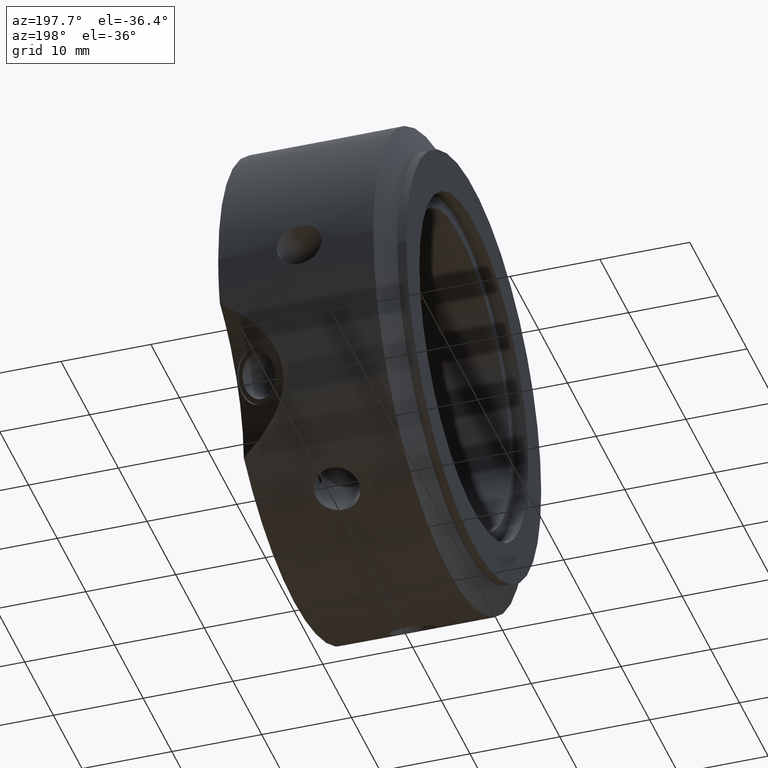
[diagram: clean part render]
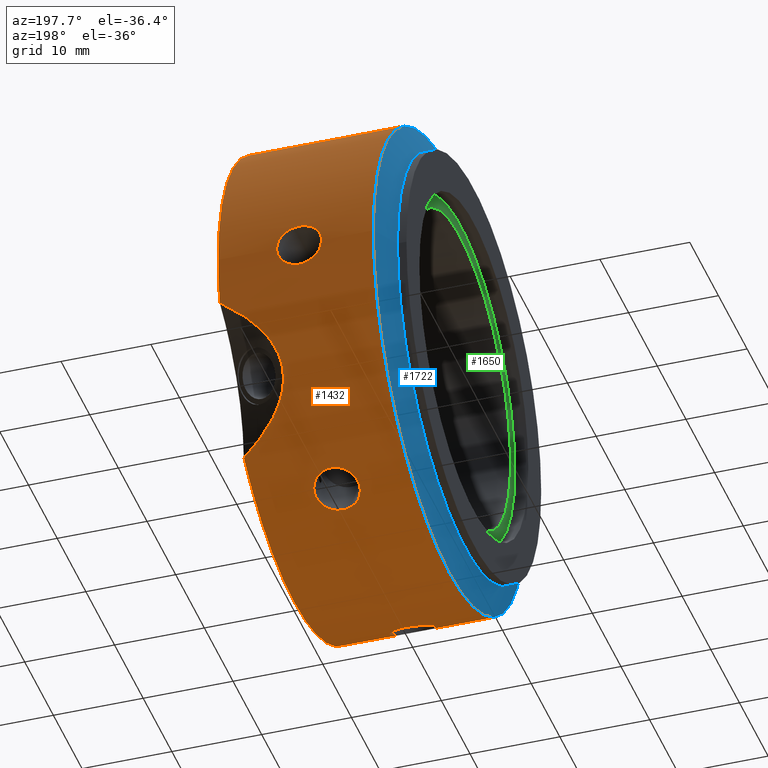
[diagram: same view with three faces highlighted in distinct colors, each labeled with its STEP entity id]
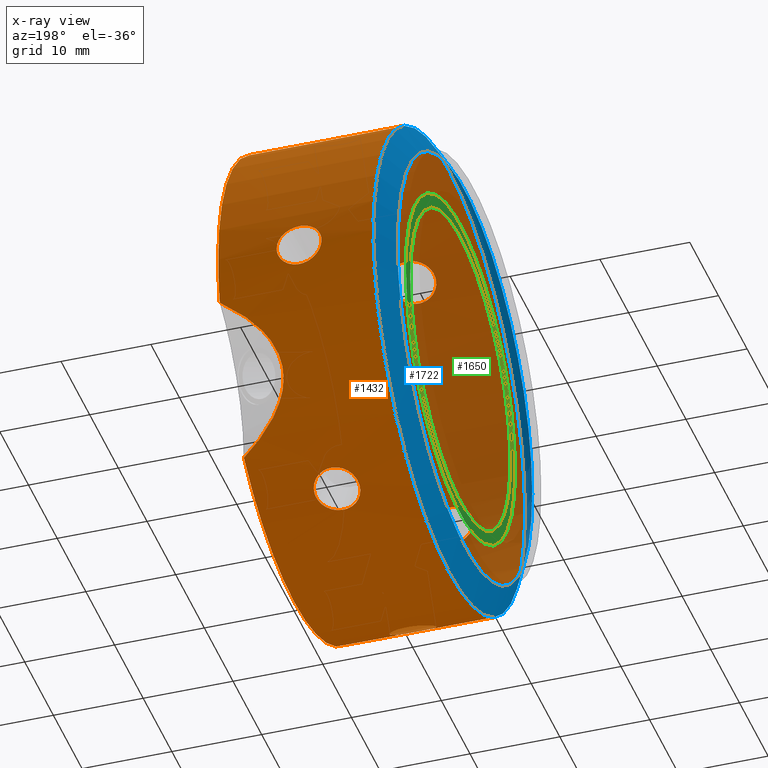
[diagram: x-ray of the same camera — body ghosted, the three highlighted faces saturated]
A machine part, auxiliary view with three faces highlighted in distinct colors.
The next image is the same camera in x-ray (body ghosted, the three faces saturated) — at least one of them is partly hidden behind the body in this view.
Their STEP definitions:

[orange] entity #1432 — the highlighted cylindrical surface (bore or boss wall) has radius 26.5 mm, axis along (1, 0, 0).
#168=CARTESIAN_POINT('',(8.5,13.250000000000025,22.949673200287613));
#169=VERTEX_POINT('',#168);
#170=CARTESIAN_POINT('',(13.5,13.250000000000027,22.949673200287613));
#171=VERTEX_POINT('',#170);
#172=CARTESIAN_POINT('',(8.5,13.250000000000025,22.949673200287613));
#173=CARTESIAN_POINT('',(8.5,13.522023480084201,22.792620370835117));
#174=CARTESIAN_POINT('',(8.562812309652411,13.808990223966212,22.619830769711818));
#175=CARTESIAN_POINT('',(8.818004759777944,14.331241888302115,22.292610008625569));
#176=CARTESIAN_POINT('',(9.010374587034297,14.56669843160158,22.138444796133694));
#177=CARTESIAN_POINT('',(9.45409210456828,14.936136238619977,21.890894813058424));
#178=CARTESIAN_POINT('',(9.735085796219577,15.094826253887202,21.781015258676018));
#179=CARTESIAN_POINT('',(10.350978508507003,15.30466606253157,21.634084267917224));
#180=CARTESIAN_POINT('',(10.685893495108676,15.355969467734038,21.597319317591712));
#181=CARTESIAN_POINT('',(11.314106504891324,15.355969467734038,21.597319317591712));
#182=CARTESIAN_POINT('',(11.649021491492991,15.30466606253157,21.634084267917224));
#183=CARTESIAN_POINT('',(12.264914203780421,15.094826253887202,21.781015258676018));
#184=CARTESIAN_POINT('',(12.545907895431721,14.93613623861998,21.890894813058424));
#185=CARTESIAN_POINT('',(12.989625412965701,14.566698431601582,22.138444796133694));
#186=CARTESIAN_POINT('',(13.18199524022206,14.331241888302113,22.292610008625569));
#187=CARTESIAN_POINT('',(13.437187690347589,13.808990223966212,22.619830769711818));
#188=CARTESIAN_POINT('',(13.5,13.522023480084197,22.792620370835117));
#189=CARTESIAN_POINT('',(13.5,13.250000000000021,22.949673200287613));
#190=B_SPLINE_CURVE_WITH_KNOTS('',3,(#172,#173,#174,#175,#176,#177,#178,#179,#180,#181,#182,#183,#184,#185,#186,#187,#188,#189),.UNSPECIFIED.,.F.,.U.,(4,2,2,2,2,2,2,2,4),(0.37692729827779,0.471158995949288,0.565390693620787,0.659622645088184,0.753854596555581,0.848086548022978,0.942318499490374,1.036550197161873,1.130781894833371),.UNSPECIFIED.);
#191=EDGE_CURVE('',#169,#171,#190,.T.);
#193=CARTESIAN_POINT('',(13.5,13.250000000000021,22.949673200287609));
#194=CARTESIAN_POINT('',(13.5,12.977976519915845,23.106726029740106));
#195=CARTESIAN_POINT('',(13.437187690347589,12.684852963892283,23.26885171942159));
#196=CARTESIAN_POINT('',(13.18199524022206,12.140345639977967,23.557524547362057));
#197=CARTESIAN_POINT('',(12.989625412965704,11.889106377930446,23.684353289100734));
#198=CARTESIAN_POINT('',(12.545907895431721,11.49000290037165,23.880520823559443));
#199=CARTESIAN_POINT('',(12.264914203780425,11.31549940728636,23.963010630916596));
#200=CARTESIAN_POINT('',(11.649021491492999,11.083333532363845,24.071271740548493));
#201=CARTESIAN_POINT('',(11.314106504891326,11.025842448811847,24.097319317591719));
#202=CARTESIAN_POINT('',(11.0,11.025842448811847,24.097319317591719));
#203=CARTESIAN_POINT('',(10.685893495108678,11.025842448811847,24.097319317591719));
#204=CARTESIAN_POINT('',(10.350978508507005,11.083333532363842,24.071271740548493));
#205=CARTESIAN_POINT('',(9.735085796219579,11.315499407286358,23.963010630916596));
#206=CARTESIAN_POINT('',(9.454092104568282,11.49000290037165,23.880520823559443));
#207=CARTESIAN_POINT('',(9.010374587034299,11.889106377930442,23.684353289100734));
#208=CARTESIAN_POINT('',(8.81800475977794,12.140345639977969,23.557524547362057));
#209=CARTESIAN_POINT('',(8.562812309652411,12.684852963892288,23.26885171942159));
#210=CARTESIAN_POINT('',(8.5,12.977976519915845,23.106726029740109));
#211=CARTESIAN_POINT('',(8.5,13.250000000000021,22.949673200287609));
#212=B_SPLINE_CURVE_WITH_KNOTS('',3,(#193,#194,#195,#196,#197,#198,#199,#200,#201,#202,#203,#204,#205,#206,#207,#208,#209,#210,#211),.UNSPECIFIED.,.F.,.U.,(4,2,2,2,3,2,2,2,4),(1.130781894833371,1.225013592504869,1.319245290176367,1.413477241643764,1.507709193111161,1.601941144578558,1.696173096045955,1.790404793717453,1.884636491388952),.UNSPECIFIED.);
#213=EDGE_CURVE('',#171,#169,#212,.T.);
#324=CARTESIAN_POINT('',(8.5,26.500000000000004,-1.765255E-014));
#325=VERTEX_POINT('',#324);
#326=CARTESIAN_POINT('',(13.5,26.500000000000004,-1.776357E-014));
#327=VERTEX_POINT('',#326);
#328=CARTESIAN_POINT('',(8.5,26.500000000000004,-1.727785E-014));
#329=CARTESIAN_POINT('',(8.5,26.500000000000004,-0.314105658905011));
#330=CARTESIAN_POINT('',(8.562812309652411,26.493843187858452,-0.649020949709788));
#331=CARTESIAN_POINT('',(8.818004759777944,26.471587528280036,-1.264914538736506));
#332=CARTESIAN_POINT('',(9.010374587034297,26.45580480953198,-1.545908492967053));
#333=CARTESIAN_POINT('',(9.45409210456828,26.42613913899158,-1.989626010501036));
#334=CARTESIAN_POINT('',(9.735085796219581,26.410325661173516,-2.181995372240594));
#335=CARTESIAN_POINT('',(10.350978508507007,26.387999594895369,-2.43718747263128));
#336=CARTESIAN_POINT('',(10.685893495108678,26.381811916545843,-2.500000000000018));
#337=CARTESIAN_POINT('',(11.314106504891324,26.381811916545843,-2.500000000000018));
#338=CARTESIAN_POINT('',(11.649021491492995,26.387999594895369,-2.43718747263128));
#339=CARTESIAN_POINT('',(12.264914203780421,26.410325661173516,-2.181995372240594));
#340=CARTESIAN_POINT('',(12.545907895431721,26.42613913899158,-1.989626010501036));
#341=CARTESIAN_POINT('',(12.989625412965701,26.45580480953198,-1.545908492967054));
#342=CARTESIAN_POINT('',(13.18199524022206,26.471587528280036,-1.264914538736507));
#343=CARTESIAN_POINT('',(13.437187690347589,26.493843187858452,-0.649020949709789));
#344=CARTESIAN_POINT('',(13.5,26.500000000000004,-0.314105658905012));
#345=CARTESIAN_POINT('',(13.5,26.500000000000004,-1.797174E-014));
#346=B_SPLINE_CURVE_WITH_KNOTS('',3,(#328,#329,#330,#331,#332,#333,#334,#335,#336,#337,#338,#339,#340,#341,#342,#343,#344,#345),.UNSPECIFIED.,.F.,.U.,(4,2,2,2,2,2,2,2,4),(0.37692729827779,0.471158995949288,0.565390693620787,0.659622645088184,0.753854596555581,0.848086548022977,0.942318499490374,1.036550197161873,1.130781894833371),.UNSPECIFIED.);
#347=EDGE_CURVE('',#325,#327,#346,.T.);
#349=CARTESIAN_POINT('',(13.5,26.500000000000004,-1.838807E-014));
#350=CARTESIAN_POINT('',(13.5,26.500000000000004,0.314105658904975));
#351=CARTESIAN_POINT('',(13.437187690347592,26.493843187858456,0.649020949709753));
#352=CARTESIAN_POINT('',(13.181995240222061,26.47158752828004,1.264914538736469));
#353=CARTESIAN_POINT('',(12.989625412965706,26.45580480953198,1.545908492967018));
#354=CARTESIAN_POINT('',(12.545907895431723,26.426139138991584,1.989626010501));
#355=CARTESIAN_POINT('',(12.264914203780426,26.410325661173523,2.181995372240556));
#356=CARTESIAN_POINT('',(11.649021491492999,26.387999594895373,2.437187472631243));
#357=CARTESIAN_POINT('',(11.314106504891326,26.381811916545843,2.499999999999983));
#358=CARTESIAN_POINT('',(11.0,26.381811916545843,2.499999999999983));
#359=CARTESIAN_POINT('',(10.685893495108678,26.381811916545843,2.499999999999983));
#360=CARTESIAN_POINT('',(10.350978508507007,26.387999594895373,2.437187472631245));
#361=CARTESIAN_POINT('',(9.735085796219581,26.410325661173523,2.181995372240559));
#362=CARTESIAN_POINT('',(9.454092104568282,26.42613913899158,1.989626010501));
#363=CARTESIAN_POINT('',(9.010374587034299,26.45580480953198,1.545908492967018));
#364=CARTESIAN_POINT('',(8.818004759777944,26.471587528280036,1.264914538736471));
#365=CARTESIAN_POINT('',(8.562812309652411,26.493843187858452,0.649020949709753));
#366=CARTESIAN_POINT('',(8.500000000000002,26.500000000000004,0.314105658904977));
#367=CARTESIAN_POINT('',(8.500000000000002,26.500000000000004,-1.706968E-014));
#368=B_SPLINE_CURVE_WITH_KNOTS('',3,(#349,#350,#351,#352,#353,#354,#355,#356,#357,#358,#359,#360,#361,#362,#363,#364,#365,#366,#367),.UNSPECIFIED.,.F.,.U.,(4,2,2,2,3,2,2,2,4),(1.130781894833371,1.225013592504869,1.319245290176367,1.413477241643764,1.507709193111161,1.601941144578558,1.696173096045955,1.790404793717453,1.884636491388951),.UNSPECIFIED.);
#369=EDGE_CURVE('',#327,#325,#368,.T.);
#480=CARTESIAN_POINT('',(8.5,13.249999999999995,-22.949673200287634));
#481=VERTEX_POINT('',#480);
#482=CARTESIAN_POINT('',(13.5,13.249999999999993,-22.949673200287634));
#483=VERTEX_POINT('',#482);
#484=CARTESIAN_POINT('',(8.5,13.249999999999995,-22.949673200287627));
#485=CARTESIAN_POINT('',(8.5,12.977976519915819,-23.106726029740127));
#486=CARTESIAN_POINT('',(8.562812309652413,12.684852963892254,-23.268851719421608));
#487=CARTESIAN_POINT('',(8.818004759777944,12.140345639977939,-23.557524547362078));
#488=CARTESIAN_POINT('',(9.010374587034297,11.889106377930414,-23.684353289100745));
#489=CARTESIAN_POINT('',(9.45409210456828,11.490002900371618,-23.880520823559451));
#490=CARTESIAN_POINT('',(9.735085796219579,11.315499407286339,-23.96301063091661));
#491=CARTESIAN_POINT('',(10.350978508507005,11.08333353236382,-24.071271740548504));
#492=CARTESIAN_POINT('',(10.685893495108678,11.025842448811819,-24.097319317591726));
#493=CARTESIAN_POINT('',(11.314106504891321,11.025842448811819,-24.097319317591726));
#494=CARTESIAN_POINT('',(11.649021491492997,11.083333532363817,-24.071271740548504));
#495=CARTESIAN_POINT('',(12.264914203780425,11.315499407286334,-23.96301063091661));
#496=CARTESIAN_POINT('',(12.545907895431721,11.490002900371618,-23.880520823559451));
#497=CARTESIAN_POINT('',(12.989625412965704,11.889106377930414,-23.684353289100748));
#498=CARTESIAN_POINT('',(13.181995240222054,12.140345639977932,-23.557524547362078));
#499=CARTESIAN_POINT('',(13.437187690347589,12.684852963892252,-23.268851719421608));
#500=CARTESIAN_POINT('',(13.5,12.977976519915821,-23.106726029740123));
#501=CARTESIAN_POINT('',(13.5,13.249999999999996,-22.949673200287627));
#502=B_SPLINE_CURVE_WITH_KNOTS('',3,(#484,#485,#486,#487,#488,#489,#490,#491,#492,#493,#494,#495,#496,#497,#498,#499,#500,#501),.UNSPECIFIED.,.F.,.U.,(4,2,2,2,2,2,2,2,4),(0.37692729827779,0.471158995949289,0.565390693620787,0.659622645088184,0.753854596555581,0.848086548022978,0.942318499490375,1.036550197161873,1.130781894833371),.UNSPECIFIED.);
#503=EDGE_CURVE('',#481,#483,#502,.T.);
#505=CARTESIAN_POINT('',(13.5,13.249999999999995,-22.949673200287627));
#506=CARTESIAN_POINT('',(13.5,13.522023480084171,-22.792620370835127));
#507=CARTESIAN_POINT('',(13.437187690347589,13.808990223966187,-22.619830769711836));
#508=CARTESIAN_POINT('',(13.18199524022206,14.331241888302086,-22.292610008625587));
#509=CARTESIAN_POINT('',(12.989625412965701,14.566698431601555,-22.138444796133712));
#510=CARTESIAN_POINT('',(12.545907895431721,14.936136238619952,-21.890894813058441));
#511=CARTESIAN_POINT('',(12.264914203780426,15.094826253887177,-21.781015258676035));
#512=CARTESIAN_POINT('',(11.649021491492997,15.304666062531547,-21.634084267917242));
#513=CARTESIAN_POINT('',(11.314106504891324,15.355969467734013,-21.597319317591726));
#514=CARTESIAN_POINT('',(11.0,15.355969467734013,-21.597319317591726));
#515=CARTESIAN_POINT('',(10.685893495108678,15.355969467734013,-21.597319317591726));
#516=CARTESIAN_POINT('',(10.350978508507009,15.304666062531545,-21.634084267917242));
#517=CARTESIAN_POINT('',(9.735085796219579,15.094826253887174,-21.781015258676035));
#518=CARTESIAN_POINT('',(9.454092104568282,14.936136238619952,-21.890894813058441));
#519=CARTESIAN_POINT('',(9.010374587034299,14.566698431601555,-22.138444796133712));
#520=CARTESIAN_POINT('',(8.818004759777944,14.331241888302086,-22.292610008625587));
#521=CARTESIAN_POINT('',(8.562812309652411,13.808990223966187,-22.619830769711836));
#522=CARTESIAN_POINT('',(8.5,13.522023480084171,-22.792620370835131));
#523=CARTESIAN_POINT('',(8.5,13.249999999999995,-22.949673200287634));
#524=B_SPLINE_CURVE_WITH_KNOTS('',3,(#505,#506,#507,#508,#509,#510,#511,#512,#513,#514,#515,#516,#517,#518,#519,#520,#521,#522,#523),.UNSPECIFIED.,.F.,.U.,(4,2,2,2,3,2,2,2,4),(1.130781894833371,1.225013592504869,1.319245290176367,1.413477241643764,1.507709193111161,1.601941144578558,1.696173096045955,1.790404793717453,1.884636491388952),.UNSPECIFIED.);
#525=EDGE_CURVE('',#483,#481,#524,.T.);
#636=CARTESIAN_POINT('',(8.5,-13.250000000000011,-22.949673200287624));
#637=VERTEX_POINT('',#636);
#638=CARTESIAN_POINT('',(13.5,-13.250000000000011,-22.949673200287624));
#639=VERTEX_POINT('',#638);
#640=CARTESIAN_POINT('',(8.5,-13.250000000000011,-22.949673200287624));
#641=CARTESIAN_POINT('',(8.5,-13.522023480084187,-22.792620370835124));
#642=CARTESIAN_POINT('',(8.562812309652411,-13.8089902239662,-22.619830769711825));
#643=CARTESIAN_POINT('',(8.818004759777942,-14.331241888302099,-22.292610008625577));
#644=CARTESIAN_POINT('',(9.010374587034297,-14.566698431601568,-22.138444796133705));
#645=CARTESIAN_POINT('',(9.45409210456828,-14.936136238619966,-21.890894813058431));
#646=CARTESIAN_POINT('',(9.735085796219575,-15.09482625388719,-21.781015258676028));
#647=CARTESIAN_POINT('',(10.350978508507001,-15.30466606253156,-21.634084267917231));
#648=CARTESIAN_POINT('',(10.685893495108676,-15.355969467734024,-21.597319317591719));
#649=CARTESIAN_POINT('',(11.314106504891326,-15.355969467734024,-21.597319317591719));
#650=CARTESIAN_POINT('',(11.649021491493002,-15.30466606253156,-21.634084267917231));
#651=CARTESIAN_POINT('',(12.264914203780426,-15.09482625388719,-21.781015258676028));
#652=CARTESIAN_POINT('',(12.545907895431721,-14.936136238619966,-21.890894813058431));
#653=CARTESIAN_POINT('',(12.989625412965704,-14.566698431601566,-22.138444796133705));
#654=CARTESIAN_POINT('',(13.181995240222054,-14.331241888302102,-22.292610008625573));
#655=CARTESIAN_POINT('',(13.437187690347587,-13.8089902239662,-22.619830769711822));
#656=CARTESIAN_POINT('',(13.5,-13.522023480084187,-22.792620370835124));
#657=CARTESIAN_POINT('',(13.5,-13.250000000000011,-22.94967320028762));
#658=B_SPLINE_CURVE_WITH_KNOTS('',3,(#640,#641,#642,#643,#644,#645,#646,#647,#648,#649,#650,#651,#652,#653,#654,#655,#656,#657),.UNSPECIFIED.,.F.,.U.,(4,2,2,2,2,2,2,2,4),(0.37692729827779,0.471158995949288,0.565390693620787,0.659622645088184,0.753854596555581,0.848086548022978,0.942318499490375,1.036550197161873,1.130781894833371),.UNSPECIFIED.);
#659=EDGE_CURVE('',#637,#639,#658,.T.);
#661=CARTESIAN_POINT('',(13.5,-13.250000000000011,-22.94967320028762));
#662=CARTESIAN_POINT('',(13.5,-12.977976519915835,-23.10672602974012));
#663=CARTESIAN_POINT('',(13.437187690347589,-12.68485296389227,-23.268851719421598));
#664=CARTESIAN_POINT('',(13.18199524022206,-12.140345639977957,-23.557524547362068));
#665=CARTESIAN_POINT('',(12.989625412965701,-11.88910637793043,-23.684353289100738));
#666=CARTESIAN_POINT('',(12.545907895431721,-11.490002900371636,-23.880520823559443));
#667=CARTESIAN_POINT('',(12.264914203780428,-11.315499407286351,-23.963010630916596));
#668=CARTESIAN_POINT('',(11.649021491493002,-11.083333532363833,-24.071271740548493));
#669=CARTESIAN_POINT('',(11.314106504891324,-11.025842448811837,-24.097319317591722));
#670=CARTESIAN_POINT('',(11.0,-11.025842448811837,-24.097319317591722));
#671=CARTESIAN_POINT('',(10.685893495108678,-11.025842448811837,-24.097319317591722));
#672=CARTESIAN_POINT('',(10.350978508507007,-11.083333532363834,-24.071271740548497));
#673=CARTESIAN_POINT('',(9.735085796219581,-11.31549940728635,-23.9630106309166));
#674=CARTESIAN_POINT('',(9.454092104568282,-11.490002900371634,-23.880520823559443));
#675=CARTESIAN_POINT('',(9.010374587034299,-11.889106377930428,-23.684353289100738));
#676=CARTESIAN_POINT('',(8.818004759777946,-12.140345639977951,-23.557524547362064));
#677=CARTESIAN_POINT('',(8.562812309652413,-12.684852963892268,-23.268851719421594));
#678=CARTESIAN_POINT('',(8.5,-12.977976519915835,-23.10672602974012));
#679=CARTESIAN_POINT('',(8.5,-13.250000000000011,-22.94967320028762));
#680=B_SPLINE_CURVE_WITH_KNOTS('',3,(#661,#662,#663,#664,#665,#666,#667,#668,#669,#670,#671,#672,#673,#674,#675,#676,#677,#678,#679),.UNSPECIFIED.,.F.,.U.,(4,2,2,2,3,2,2,2,4),(1.130781894833371,1.225013592504869,1.319245290176367,1.413477241643764,1.507709193111161,1.601941144578558,1.696173096045955,1.790404793717453,1.884636491388951),.UNSPECIFIED.);
#681=EDGE_CURVE('',#639,#637,#680,.T.);
#792=CARTESIAN_POINT('',(8.5,-26.500000000000004,7.355228E-015));
#793=VERTEX_POINT('',#792);
#794=CARTESIAN_POINT('',(13.5,-26.500000000000004,6.661338E-015));
#795=VERTEX_POINT('',#794);
#796=CARTESIAN_POINT('',(8.5,-26.500000000000004,7.147061E-015));
#797=CARTESIAN_POINT('',(8.5,-26.500000000000004,0.314105658905001));
#798=CARTESIAN_POINT('',(8.562812309652411,-26.493843187858452,0.649020949709778));
#799=CARTESIAN_POINT('',(8.818004759777944,-26.471587528280036,1.264914538736495));
#800=CARTESIAN_POINT('',(9.010374587034299,-26.45580480953198,1.545908492967043));
#801=CARTESIAN_POINT('',(9.45409210456828,-26.42613913899158,1.989626010501025));
#802=CARTESIAN_POINT('',(9.735085796219581,-26.410325661173516,2.181995372240583));
#803=CARTESIAN_POINT('',(10.350978508507007,-26.387999594895369,2.437187472631269));
#804=CARTESIAN_POINT('',(10.685893495108678,-26.381811916545843,2.500000000000007));
#805=CARTESIAN_POINT('',(11.314106504891324,-26.381811916545843,2.500000000000007));
#806=CARTESIAN_POINT('',(11.649021491492995,-26.387999594895369,2.437187472631269));
#807=CARTESIAN_POINT('',(12.264914203780421,-26.410325661173516,2.181995372240583));
#808=CARTESIAN_POINT('',(12.545907895431721,-26.42613913899158,1.989626010501025));
#809=CARTESIAN_POINT('',(12.989625412965701,-26.45580480953198,1.545908492967044));
#810=CARTESIAN_POINT('',(13.181995240222058,-26.471587528280036,1.264914538736497));
#811=CARTESIAN_POINT('',(13.437187690347587,-26.493843187858452,0.64902094970978));
#812=CARTESIAN_POINT('',(13.5,-26.500000000000004,0.314105658905003));
#813=CARTESIAN_POINT('',(13.5,-26.500000000000004,8.396062E-015));
#814=B_SPLINE_CURVE_WITH_KNOTS('',3,(#796,#797,#798,#799,#800,#801,#802,#803,#804,#805,#806,#807,#808,#809,#810,#811,#812,#813),.UNSPECIFIED.,.F.,.U.,(4,2,2,2,2,2,2,2,4),(0.37692729827779,0.471158995949288,0.565390693620787,0.659622645088184,0.753854596555581,0.848086548022977,0.942318499490374,1.036550197161872,1.130781894833371),.UNSPECIFIED.);
#815=EDGE_CURVE('',#793,#795,#814,.T.);
#817=CARTESIAN_POINT('',(13.5,-26.500000000000004,8.257284E-015));
#818=CARTESIAN_POINT('',(13.5,-26.500000000000004,-0.314105658904986));
#819=CARTESIAN_POINT('',(13.437187690347589,-26.493843187858452,-0.649020949709763));
#820=CARTESIAN_POINT('',(13.18199524022206,-26.471587528280036,-1.26491453873648));
#821=CARTESIAN_POINT('',(12.989625412965701,-26.45580480953198,-1.545908492967028));
#822=CARTESIAN_POINT('',(12.545907895431721,-26.42613913899158,-1.989626010501011));
#823=CARTESIAN_POINT('',(12.264914203780425,-26.410325661173523,-2.181995372240567));
#824=CARTESIAN_POINT('',(11.649021491492997,-26.387999594895373,-2.437187472631254));
#825=CARTESIAN_POINT('',(11.314106504891324,-26.381811916545843,-2.499999999999993));
#826=CARTESIAN_POINT('',(11.0,-26.381811916545843,-2.499999999999993));
#827=CARTESIAN_POINT('',(10.685893495108678,-26.381811916545843,-2.499999999999993));
#828=CARTESIAN_POINT('',(10.350978508507007,-26.387999594895373,-2.437187472631254));
#829=CARTESIAN_POINT('',(9.735085796219581,-26.410325661173523,-2.181995372240569));
#830=CARTESIAN_POINT('',(9.454092104568282,-26.42613913899158,-1.989626010501011));
#831=CARTESIAN_POINT('',(9.010374587034299,-26.45580480953198,-1.545908492967029));
#832=CARTESIAN_POINT('',(8.818004759777944,-26.471587528280036,-1.264914538736481));
#833=CARTESIAN_POINT('',(8.562812309652411,-26.493843187858452,-0.649020949709764));
#834=CARTESIAN_POINT('',(8.5,-26.500000000000004,-0.314105658904987));
#835=CARTESIAN_POINT('',(8.5,-26.500000000000004,7.077672E-015));
#836=B_SPLINE_CURVE_WITH_KNOTS('',3,(#817,#818,#819,#820,#821,#822,#823,#824,#825,#826,#827,#828,#829,#830,#831,#832,#833,#834,#835),.UNSPECIFIED.,.F.,.U.,(4,2,2,2,3,2,2,2,4),(1.130781894833371,1.225013592504869,1.319245290176367,1.413477241643764,1.507709193111161,1.601941144578558,1.696173096045955,1.790404793717453,1.884636491388951),.UNSPECIFIED.);
#837=EDGE_CURVE('',#795,#793,#836,.T.);
#948=CARTESIAN_POINT('',(8.5,-13.25,22.949673200287627));
#949=VERTEX_POINT('',#948);
#950=CARTESIAN_POINT('',(13.5,-13.249999999999996,22.949673200287627));
#951=VERTEX_POINT('',#950);
#952=CARTESIAN_POINT('',(8.5,-13.25,22.949673200287627));
#953=CARTESIAN_POINT('',(8.5,-12.977976519915824,23.106726029740127));
#954=CARTESIAN_POINT('',(8.562812309652411,-12.684852963892254,23.268851719421608));
#955=CARTESIAN_POINT('',(8.818004759777944,-12.140345639977937,23.557524547362078));
#956=CARTESIAN_POINT('',(9.010374587034297,-11.889106377930416,23.684353289100745));
#957=CARTESIAN_POINT('',(9.45409210456828,-11.490002900371623,23.880520823559451));
#958=CARTESIAN_POINT('',(9.735085796219579,-11.315499407286334,23.96301063091661));
#959=CARTESIAN_POINT('',(10.350978508507005,-11.083333532363817,24.071271740548504));
#960=CARTESIAN_POINT('',(10.685893495108678,-11.025842448811821,24.097319317591726));
#961=CARTESIAN_POINT('',(11.314106504891321,-11.025842448811819,24.097319317591726));
#962=CARTESIAN_POINT('',(11.649021491492995,-11.08333353236382,24.071271740548504));
#963=CARTESIAN_POINT('',(12.264914203780421,-11.315499407286334,23.96301063091661));
#964=CARTESIAN_POINT('',(12.545907895431718,-11.490002900371623,23.880520823559451));
#965=CARTESIAN_POINT('',(12.989625412965701,-11.889106377930414,23.684353289100741));
#966=CARTESIAN_POINT('',(13.18199524022206,-12.140345639977941,23.557524547362078));
#967=CARTESIAN_POINT('',(13.437187690347589,-12.684852963892258,23.268851719421608));
#968=CARTESIAN_POINT('',(13.5,-12.977976519915821,23.106726029740123));
#969=CARTESIAN_POINT('',(13.5,-13.249999999999996,22.949673200287627));
#970=B_SPLINE_CURVE_WITH_KNOTS('',3,(#952,#953,#954,#955,#956,#957,#958,#959,#960,#961,#962,#963,#964,#965,#966,#967,#968,#969),.UNSPECIFIED.,.F.,.U.,(4,2,2,2,2,2,2,2,4),(0.37692729827779,0.471158995949289,0.565390693620787,0.659622645088184,0.753854596555581,0.848086548022978,0.942318499490374,1.036550197161873,1.130781894833371),.UNSPECIFIED.);
#971=EDGE_CURVE('',#949,#951,#970,.T.);
#973=CARTESIAN_POINT('',(13.499999999999998,-13.249999999999996,22.949673200287627));
#974=CARTESIAN_POINT('',(13.499999999999998,-13.522023480084172,22.792620370835131));
#975=CARTESIAN_POINT('',(13.437187690347587,-13.808990223966191,22.619830769711836));
#976=CARTESIAN_POINT('',(13.181995240222053,-14.331241888302092,22.292610008625587));
#977=CARTESIAN_POINT('',(12.989625412965704,-14.566698431601557,22.138444796133712));
#978=CARTESIAN_POINT('',(12.545907895431723,-14.936136238619957,21.890894813058438));
#979=CARTESIAN_POINT('',(12.264914203780426,-15.094826253887177,21.781015258676035));
#980=CARTESIAN_POINT('',(11.649021491492999,-15.304666062531549,21.634084267917242));
#981=CARTESIAN_POINT('',(11.314106504891326,-15.355969467734013,21.597319317591726));
#982=CARTESIAN_POINT('',(11.0,-15.355969467734013,21.597319317591726));
#983=CARTESIAN_POINT('',(10.685893495108678,-15.355969467734013,21.597319317591726));
#984=CARTESIAN_POINT('',(10.350978508507007,-15.304666062531549,21.634084267917242));
#985=CARTESIAN_POINT('',(9.735085796219581,-15.094826253887179,21.781015258676035));
#986=CARTESIAN_POINT('',(9.454092104568282,-14.936136238619955,21.890894813058438));
#987=CARTESIAN_POINT('',(9.010374587034299,-14.566698431601557,22.138444796133712));
#988=CARTESIAN_POINT('',(8.818004759777947,-14.331241888302092,22.292610008625587));
#989=CARTESIAN_POINT('',(8.562812309652415,-13.808990223966191,22.619830769711836));
#990=CARTESIAN_POINT('',(8.5,-13.522023480084171,22.792620370835131));
#991=CARTESIAN_POINT('',(8.5,-13.249999999999996,22.949673200287627));
#992=B_SPLINE_CURVE_WITH_KNOTS('',3,(#973,#974,#975,#976,#977,#978,#979,#980,#981,#982,#983,#984,#985,#986,#987,#988,#989,#990,#991),.UNSPECIFIED.,.F.,.U.,(4,2,2,2,3,2,2,2,4),(1.130781894833371,1.225013592504869,1.319245290176368,1.413477241643764,1.507709193111162,1.601941144578558,1.696173096045955,1.790404793717454,1.884636491388952),.UNSPECIFIED.);
#993=EDGE_CURVE('',#951,#949,#992,.T.);
#1137=CARTESIAN_POINT('',(19.999999999999993,17.568196461995893,-19.839568369113152));
#1138=VERTEX_POINT('',#1137);
#1139=CARTESIAN_POINT('',(19.999999999999996,25.965668438768141,-5.294720250207787));
#1140=VERTEX_POINT('',#1139);
#1148=CARTESIAN_POINT('',(19.999999999999993,25.965668438768134,-5.294720250207787));
#1149=CARTESIAN_POINT('',(19.417202950099643,25.884036047213776,-5.695051053876027));
#1150=CARTESIAN_POINT('',(18.853987841002475,25.790031047811532,-6.109242386208191));
#1151=CARTESIAN_POINT('',(17.218215628209641,25.456061434794087,-7.420403596657926));
#1152=CARTESIAN_POINT('',(16.104807344265808,25.139626762688195,-8.471541082482709));
#1153=CARTESIAN_POINT('',(14.871046206200429,24.468793994713049,-10.193507460183504));
#1154=CARTESIAN_POINT('',(14.531883708641192,24.21225622617699,-10.792277397172796));
#1155=CARTESIAN_POINT('',(14.065020556219846,23.63076366420481,-12.01222759128358));
#1156=CARTESIAN_POINT('',(13.93782217350893,23.305607360312351,-12.633503950687832));
#1157=CARTESIAN_POINT('',(13.937822173508936,22.593739040262886,-13.866496049312198));
#1158=CARTESIAN_POINT('',(14.065020556219842,22.218276082194333,-14.458727848385848));
#1159=CARTESIAN_POINT('',(14.531883708641191,21.452514503728722,-15.572290276220844));
#1160=CARTESIAN_POINT('',(14.871046206200438,21.062233411541609,-16.093843469297887));
#1161=CARTESIAN_POINT('',(16.104807344265815,19.906383167977626,-17.53578487690579));
#1162=CARTESIAN_POINT('',(17.218215628209638,19.1542887384362,-18.335394084500084));
#1163=CARTESIAN_POINT('',(18.853987841002468,18.185774628238704,-19.280200858690119));
#1164=CARTESIAN_POINT('',(19.417202950099647,17.874076912112848,-19.568707242421283));
#1165=CARTESIAN_POINT('',(19.999999999999993,17.568196461995889,-19.839568369113156));
#1166=B_SPLINE_CURVE_WITH_KNOTS('',3,(#1148,#1149,#1150,#1151,#1152,#1153,#1154,#1155,#1156,#1157,#1158,#1159,#1160,#1161,#1162,#1163,#1164,#1165),.UNSPECIFIED.,.F.,.U.,(4,2,2,2,2,2,2,2,4),(2.174714289205302,2.38444391850821,2.811564910537885,3.025125406552723,3.238685902567561,3.452246398582399,3.665806894597236,4.092927886626912,4.302657515929819),.UNSPECIFIED.);
#1167=EDGE_CURVE('',#1140,#1138,#1166,.T.);
#1308=CARTESIAN_POINT('',(19.999999999999993,-25.965668438768144,-5.294720250207762));
#1309=VERTEX_POINT('',#1308);
#1310=CARTESIAN_POINT('',(19.999999999999993,-17.568196461995907,-19.839568369113145));
#1311=VERTEX_POINT('',#1310);
#1319=CARTESIAN_POINT('',(19.999999999999993,-17.568196461995907,-19.839568369113142));
#1320=CARTESIAN_POINT('',(19.378033251562361,-17.894635089306071,-19.550502708476213));
#1321=CARTESIAN_POINT('',(18.778497996442098,-18.227608340104929,-19.241440694609121));
#1322=CARTESIAN_POINT('',(17.134506604625404,-19.210084362314166,-18.276501916167732));
#1323=CARTESIAN_POINT('',(16.047063750004689,-19.952118328767323,-17.482726902647009));
#1324=CARTESIAN_POINT('',(14.844542099247104,-21.091538400807551,-16.055146011249253));
#1325=CARTESIAN_POINT('',(14.51448360010242,-21.476135349429693,-15.539303632464511));
#1326=CARTESIAN_POINT('',(14.06086667142683,-22.230246257512047,-14.439892601397155));
#1327=CARTESIAN_POINT('',(13.937822173508927,-22.599741644703712,-13.856099233442956));
#1328=CARTESIAN_POINT('',(13.937822173508927,-23.299604755871552,-12.643900766557037));
#1329=CARTESIAN_POINT('',(14.060866671426833,-23.620436949484926,-12.032011690690787));
#1330=CARTESIAN_POINT('',(14.514483600102421,-24.195499377548913,-10.82922697148684));
#1331=CARTESIAN_POINT('',(14.844542099247102,-24.449933507614034,-10.238235054369708));
#1332=CARTESIAN_POINT('',(16.047063750004689,-25.116544789501603,-8.537677880702098));
#1333=CARTESIAN_POINT('',(17.134506604625408,-25.432957132873312,-7.49817010852238));
#1334=CARTESIAN_POINT('',(18.778497996442102,-25.777380616995661,-6.164851525459402));
#1335=CARTESIAN_POINT('',(19.378033251562357,-25.878549546949905,-5.721957224553354));
#1336=CARTESIAN_POINT('',(19.999999999999993,-25.965668438768141,-5.294720250207766));
#1337=B_SPLINE_CURVE_WITH_KNOTS('',3,(#1319,#1320,#1321,#1322,#1323,#1324,#1325,#1326,#1327,#1328,#1329,#1330,#1331,#1332,#1333,#1334,#1335,#1336),.UNSPECIFIED.,.F.,.U.,(4,2,2,2,2,2,2,2,4),(2.107228428642606,2.330674091297671,2.750591957998374,2.960550891348725,3.170509824699076,3.380468758049427,3.590427691399779,4.010345558100481,4.233791220755546),.UNSPECIFIED.);
#1338=EDGE_CURVE('',#1311,#1309,#1337,.T.);
#1346=CARTESIAN_POINT('',(11.36602540378443,0.0,0.0));
#1347=DIRECTION('',(1.0,0.0,0.0));
#1348=DIRECTION('',(0.0,1.0,0.0));
#1349=AXIS2_PLACEMENT_3D('',#1346,#1347,#1348);
#1350=CYLINDRICAL_SURFACE('',#1349,26.500000000000004);
#1351=CARTESIAN_POINT('',(2.732050807568869,26.500000000000004,0.0));
#1352=VERTEX_POINT('',#1351);
#1353=CARTESIAN_POINT('',(2.732050807568869,0.0,0.0));
#1354=DIRECTION('',(1.0,0.0,0.0));
#1355=DIRECTION('',(0.0,1.0,0.0));
#1356=AXIS2_PLACEMENT_3D('',#1353,#1354,#1355);
#1357=CIRCLE('',#1356,26.500000000000004);
#1358=EDGE_CURVE('',#1352,#1352,#1357,.T.);
#1359=ORIENTED_EDGE('',*,*,#1358,.T.);
#1360=EDGE_LOOP('',(#1359));
#1361=FACE_OUTER_BOUND('',#1360,.T.);
#1362=ORIENTED_EDGE('',*,*,#191,.T.);
#1363=ORIENTED_EDGE('',*,*,#213,.T.);
#1364=EDGE_LOOP('',(#1362,#1363));
#1365=FACE_BOUND('',#1364,.T.);
#1366=ORIENTED_EDGE('',*,*,#347,.T.);
#1367=ORIENTED_EDGE('',*,*,#369,.T.);
#1368=EDGE_LOOP('',(#1366,#1367));
#1369=FACE_BOUND('',#1368,.T.);
#1370=ORIENTED_EDGE('',*,*,#503,.T.);
#1371=ORIENTED_EDGE('',*,*,#525,.T.);
#1372=EDGE_LOOP('',(#1370,#1371));
#1373=FACE_BOUND('',#1372,.T.);
#1374=ORIENTED_EDGE('',*,*,#659,.T.);
#1375=ORIENTED_EDGE('',*,*,#681,.T.);
#1376=EDGE_LOOP('',(#1374,#1375));
#1377=FACE_BOUND('',#1376,.T.);
#1378=ORIENTED_EDGE('',*,*,#815,.T.);
#1379=ORIENTED_EDGE('',*,*,#837,.T.);
#1380=EDGE_LOOP('',(#1378,#1379));
#1381=FACE_BOUND('',#1380,.T.);
#1382=ORIENTED_EDGE('',*,*,#971,.T.);
#1383=ORIENTED_EDGE('',*,*,#993,.T.);
#1384=EDGE_LOOP('',(#1382,#1383));
#1385=FACE_BOUND('',#1384,.T.);
#1386=ORIENTED_EDGE('',*,*,#1167,.T.);
#1387=CARTESIAN_POINT('',(19.999999999999993,0.0,0.0));
#1388=DIRECTION('',(1.0,0.0,0.0));
#1389=DIRECTION('',(0.0,1.0,0.0));
#1390=AXIS2_PLACEMENT_3D('',#1387,#1388,#1389);
#1391=CIRCLE('',#1390,26.500000000000004);
#1392=EDGE_CURVE('',#1311,#1138,#1391,.T.);
#1393=ORIENTED_EDGE('',*,*,#1392,.F.);
#1394=ORIENTED_EDGE('',*,*,#1338,.T.);
#1395=CARTESIAN_POINT('',(19.999999999999993,-8.397471976772245,25.134288619320916));
#1396=VERTEX_POINT('',#1395);
#1397=CARTESIAN_POINT('',(19.999999999999993,0.0,0.0));
#1398=DIRECTION('',(1.0,0.0,0.0));
#1399=DIRECTION('',(0.0,1.0,0.0));
#1400=AXIS2_PLACEMENT_3D('',#1397,#1398,#1399);
#1401=CIRCLE('',#1400,26.500000000000004);
#1402=EDGE_CURVE('',#1396,#1309,#1401,.T.);
#1403=ORIENTED_EDGE('',*,*,#1402,.F.);
#1404=CARTESIAN_POINT('',(19.999999999999993,8.397471976772245,25.134288619320916));
#1405=VERTEX_POINT('',#1404);
#1406=CARTESIAN_POINT('',(19.999999999999993,-8.397471976772243,25.13428861932092));
#1407=CARTESIAN_POINT('',(18.848597377080068,-7.631882476290386,25.39007530472826));
#1408=CARTESIAN_POINT('',(17.776723989767017,-6.799859974948638,25.630423462486789));
#1409=CARTESIAN_POINT('',(16.079760979445933,-5.115906761518691,26.013027488688216));
#1410=CARTESIAN_POINT('',(15.327177426223606,-4.206109035267589,26.183689824452578));
#1411=CARTESIAN_POINT('',(14.250987041069234,-2.19413941212522,26.428445846054931));
#1412=CARTESIAN_POINT('',(13.937822173508927,-1.086091877001568,26.500000000000004));
#1413=CARTESIAN_POINT('',(13.937822173508925,1.086091877001567,26.500000000000004));
#1414=CARTESIAN_POINT('',(14.250987041069232,2.194139412125215,26.428445846054935));
#1415=CARTESIAN_POINT('',(15.327177426223599,4.206109035267586,26.183689824452582));
#1416=CARTESIAN_POINT('',(16.079760979445933,5.115906761518689,26.013027488688213));
#1417=CARTESIAN_POINT('',(17.776723989767017,6.799859974948639,25.630423462486792));
#1418=CARTESIAN_POINT('',(18.848597377080065,7.631882476290384,25.390075304728256));
#1419=CARTESIAN_POINT('',(19.999999999999993,8.397471976772241,25.134288619320916));
#1420=B_SPLINE_CURVE_WITH_KNOTS('',3,(#1406,#1407,#1408,#1409,#1410,#1411,#1412,#1413,#1414,#1415,#1416,#1417,#1418,#1419),.UNSPECIFIED.,.F.,.U.,(4,2,2,2,2,2,4),(1.203837784288229,1.604342855168645,1.930170418269115,2.255997981369586,2.581825544470056,2.907653107570527,3.308158178450943),.UNSPECIFIED.);
#1421=EDGE_CURVE('',#1396,#1405,#1420,.T.);
#1422=ORIENTED_EDGE('',*,*,#1421,.T.);
#1423=CARTESIAN_POINT('',(19.999999999999993,0.0,0.0));
#1424=DIRECTION('',(1.0,0.0,0.0));
#1425=DIRECTION('',(0.0,1.0,0.0));
#1426=AXIS2_PLACEMENT_3D('',#1423,#1424,#1425);
#1427=CIRCLE('',#1426,26.500000000000004);
#1428=EDGE_CURVE('',#1140,#1405,#1427,.T.);
#1429=ORIENTED_EDGE('',*,*,#1428,.F.);
#1430=EDGE_LOOP('',(#1386,#1393,#1394,#1403,#1422,#1429));
#1431=FACE_BOUND('',#1430,.T.);
#1432=ADVANCED_FACE('',(#1361,#1365,#1369,#1373,#1377,#1381,#1385,#1431),#1350,.T.);

[blue] entity #1722 — the highlighted conical surface has half-angle 60 deg.
#1351=CARTESIAN_POINT('',(2.732050807568869,26.500000000000004,0.0));
#1352=VERTEX_POINT('',#1351);
#1353=CARTESIAN_POINT('',(2.732050807568869,0.0,0.0));
#1354=DIRECTION('',(1.0,0.0,0.0));
#1355=DIRECTION('',(0.0,1.0,0.0));
#1356=AXIS2_PLACEMENT_3D('',#1353,#1354,#1355);
#1357=CIRCLE('',#1356,26.500000000000004);
#1358=EDGE_CURVE('',#1352,#1352,#1357,.T.);
#1696=CARTESIAN_POINT('',(0.999999999999996,23.5,0.0));
#1697=VERTEX_POINT('',#1696);
#1698=CARTESIAN_POINT('',(0.999999999999996,0.0,0.0));
#1699=DIRECTION('',(1.0,0.0,0.0));
#1700=DIRECTION('',(0.0,1.0,0.0));
#1701=AXIS2_PLACEMENT_3D('',#1698,#1699,#1700);
#1702=CIRCLE('',#1701,23.5);
#1703=EDGE_CURVE('',#1697,#1697,#1702,.T.);
#1711=CARTESIAN_POINT('',(1.866025403784432,0.0,0.0));
#1712=DIRECTION('',(1.0,0.0,0.0));
#1713=DIRECTION('',(0.0,1.0,0.0));
#1714=AXIS2_PLACEMENT_3D('',#1711,#1712,#1713);
#1715=CONICAL_SURFACE('',#1714,25.0,60.000000000000085);
#1716=ORIENTED_EDGE('',*,*,#1358,.F.);
#1717=EDGE_LOOP('',(#1716));
#1718=FACE_OUTER_BOUND('',#1717,.T.);
#1719=ORIENTED_EDGE('',*,*,#1703,.T.);
#1720=EDGE_LOOP('',(#1719));
#1721=FACE_BOUND('',#1720,.T.);
#1722=ADVANCED_FACE('',(#1718,#1721),#1715,.T.);

[green] entity #1650 — the highlighted planar face has unit normal (-1, 0, 0).
#1623=CARTESIAN_POINT('',(1.499999999999995,18.25,0.0));
#1624=DIRECTION('',(-1.0,0.0,0.0));
#1625=DIRECTION('',(0.0,0.0,1.0));
#1626=AXIS2_PLACEMENT_3D('',#1623,#1624,#1625);
#1627=PLANE('',#1626);
#1628=CARTESIAN_POINT('',(1.499999999999995,19.0,0.0));
#1629=VERTEX_POINT('',#1628);
#1630=CARTESIAN_POINT('',(1.499999999999995,0.0,0.0));
#1631=DIRECTION('',(1.0,0.0,0.0));
#1632=DIRECTION('',(0.0,1.0,0.0));
#1633=AXIS2_PLACEMENT_3D('',#1630,#1631,#1632);
#1634=CIRCLE('',#1633,19.0);
#1635=EDGE_CURVE('',#1629,#1629,#1634,.T.);
#1636=ORIENTED_EDGE('',*,*,#1635,.F.);
#1637=EDGE_LOOP('',(#1636));
#1638=FACE_OUTER_BOUND('',#1637,.T.);
#1639=CARTESIAN_POINT('',(1.499999999999995,17.5,0.0));
#1640=VERTEX_POINT('',#1639);
#1641=CARTESIAN_POINT('',(1.499999999999995,0.0,0.0));
#1642=DIRECTION('',(1.0,0.0,0.0));
#1643=DIRECTION('',(0.0,1.0,0.0));
#1644=AXIS2_PLACEMENT_3D('',#1641,#1642,#1643);
#1645=CIRCLE('',#1644,17.5);
#1646=EDGE_CURVE('',#1640,#1640,#1645,.T.);
#1647=ORIENTED_EDGE('',*,*,#1646,.T.);
#1648=EDGE_LOOP('',(#1647));
#1649=FACE_BOUND('',#1648,.T.);
#1650=ADVANCED_FACE('',(#1638,#1649),#1627,.T.);